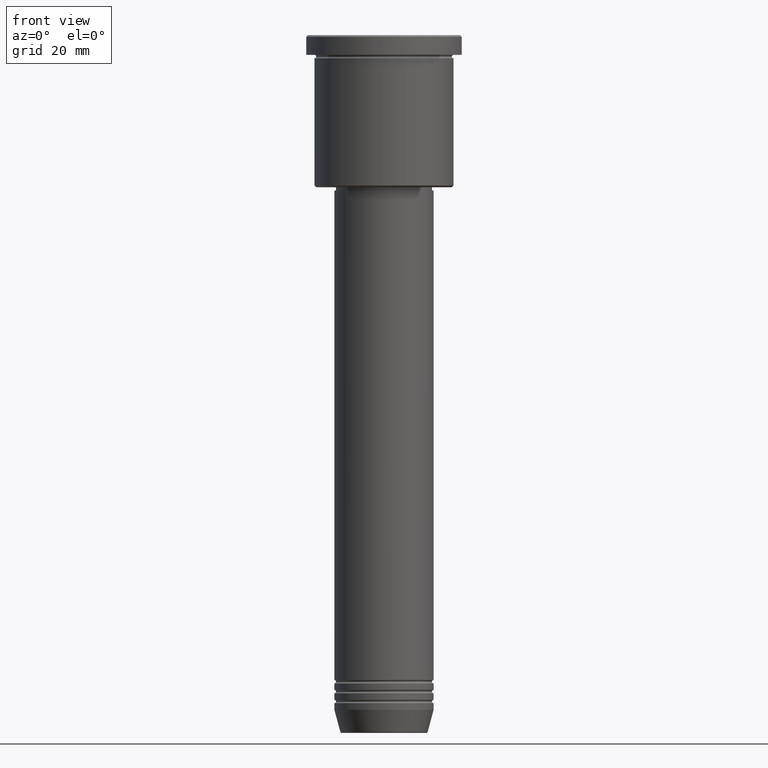
[diagram: clean part render]
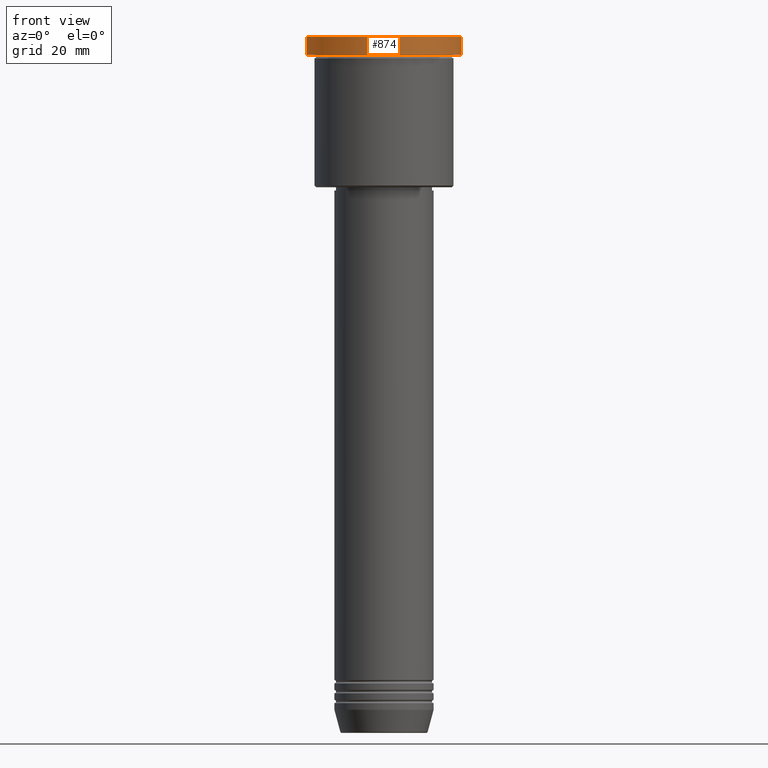
[diagram: same view with one face highlighted and labeled with its STEP entity id]
A machine part, front view. The second image highlights one B-rep face of the part: STEP entity #874.
In plain terms, the highlighted cylindrical surface (partial cylindrical patch) has radius 23.5 mm, axis along (-0, -0, 1).
Its self-contained STEP definition (entity closure, byte-faithful):
#7 = CARTESIAN_POINT ( 'NONE',  ( 23.50000000000000000, 0.000000000000000000, 0.000000000000000000 ) ) ;
#36 = VERTEX_POINT ( 'NONE', #1168 ) ;
#38 = CARTESIAN_POINT ( 'NONE',  ( 0.000000000000000000, 0.000000000000000000, 0.000000000000000000 ) ) ;
#63 = CARTESIAN_POINT ( 'NONE',  ( 0.000000000000000000, 0.000000000000000000, -5.999999999999994671 ) ) ;
#65 = VERTEX_POINT ( 'NONE', #907 ) ;
#116 = CYLINDRICAL_SURFACE ( 'NONE', #980, 23.50000000000000000 ) ;
#164 = DIRECTION ( 'NONE',  ( 0.000000000000000000, 0.000000000000000000, -1.000000000000000000 ) ) ;
#186 = DIRECTION ( 'NONE',  ( -0.000000000000000000, -0.000000000000000000, 1.000000000000000000 ) ) ;
#247 = ORIENTED_EDGE ( 'NONE', *, *, #945, .T. ) ;
#305 = ORIENTED_EDGE ( 'NONE', *, *, #1051, .F. ) ;
#477 = ORIENTED_EDGE ( 'NONE', *, *, #739, .T. ) ;
#503 = CIRCLE ( 'NONE', #703, 23.50000000000000000 ) ;
#525 = ORIENTED_EDGE ( 'NONE', *, *, #843, .T. ) ;
#605 = CARTESIAN_POINT ( 'NONE',  ( 23.50000000000000000, 0.000000000000000000, -0.5000000000000004441 ) ) ;
#607 = DIRECTION ( 'NONE',  ( -0.000000000000000000, -0.000000000000000000, 1.000000000000000000 ) ) ;
#666 = CIRCLE ( 'NONE', #937, 23.50000000000000000 ) ;
#703 = AXIS2_PLACEMENT_3D ( 'NONE', #1172, #164, #730 ) ;
#704 = VECTOR ( 'NONE', #1039, 1000.000000000000000 ) ;
#730 = DIRECTION ( 'NONE',  ( 1.000000000000000000, 0.000000000000000000, 0.000000000000000000 ) ) ;
#739 = EDGE_CURVE ( 'NONE', #36, #1129, #1061, .T. ) ;
#763 = DIRECTION ( 'NONE',  ( -0.000000000000000000, -0.000000000000000000, 1.000000000000000000 ) ) ;
#793 = VECTOR ( 'NONE', #186, 1000.000000000000000 ) ;
#811 = DIRECTION ( 'NONE',  ( 1.000000000000000000, 0.000000000000000000, 0.000000000000000000 ) ) ;
#829 = LINE ( 'NONE', #870, #704 ) ;
#843 = EDGE_CURVE ( 'NONE', #1154, #36, #666, .T. ) ;
#870 = CARTESIAN_POINT ( 'NONE',  ( -23.50000000000000000, 2.877919977996280320E-15, 0.000000000000000000 ) ) ;
#874 = ADVANCED_FACE ( 'NONE', ( #950 ), #116, .T. ) ;
#888 = EDGE_LOOP ( 'NONE', ( #305, #525, #477, #247 ) ) ;
#907 = CARTESIAN_POINT ( 'NONE',  ( -23.50000000000000000, 2.877919977996280320E-15, -0.5000000000000004441 ) ) ;
#937 = AXIS2_PLACEMENT_3D ( 'NONE', #63, #607, #811 ) ;
#945 = EDGE_CURVE ( 'NONE', #1129, #65, #503, .T. ) ;
#950 = FACE_OUTER_BOUND ( 'NONE', #888, .T. ) ;
#980 = AXIS2_PLACEMENT_3D ( 'NONE', #38, #763, #1131 ) ;
#1039 = DIRECTION ( 'NONE',  ( -0.000000000000000000, -0.000000000000000000, 1.000000000000000000 ) ) ;
#1051 = EDGE_CURVE ( 'NONE', #1154, #65, #829, .T. ) ;
#1061 = LINE ( 'NONE', #7, #793 ) ;
#1096 = CARTESIAN_POINT ( 'NONE',  ( -23.50000000000000000, 2.877919977996280320E-15, -5.999999999999994671 ) ) ;
#1129 = VERTEX_POINT ( 'NONE', #605 ) ;
#1131 = DIRECTION ( 'NONE',  ( 1.000000000000000000, 0.000000000000000000, 0.000000000000000000 ) ) ;
#1154 = VERTEX_POINT ( 'NONE', #1096 ) ;
#1168 = CARTESIAN_POINT ( 'NONE',  ( 23.50000000000000000, 0.000000000000000000, -5.999999999999994671 ) ) ;
#1172 = CARTESIAN_POINT ( 'NONE',  ( 0.000000000000000000, 0.000000000000000000, -0.5000000000000004441 ) ) ;